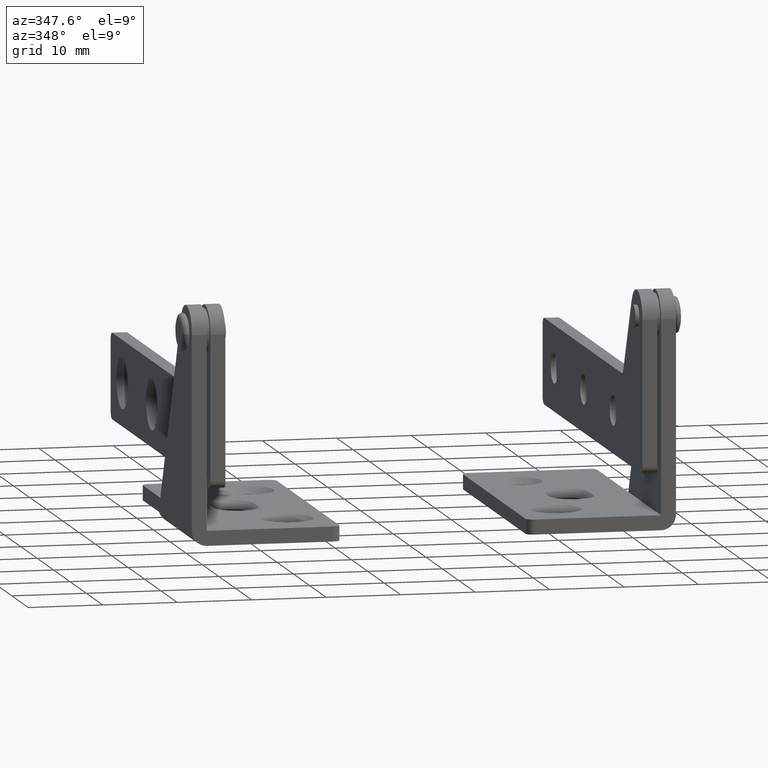
[diagram: clean part render]
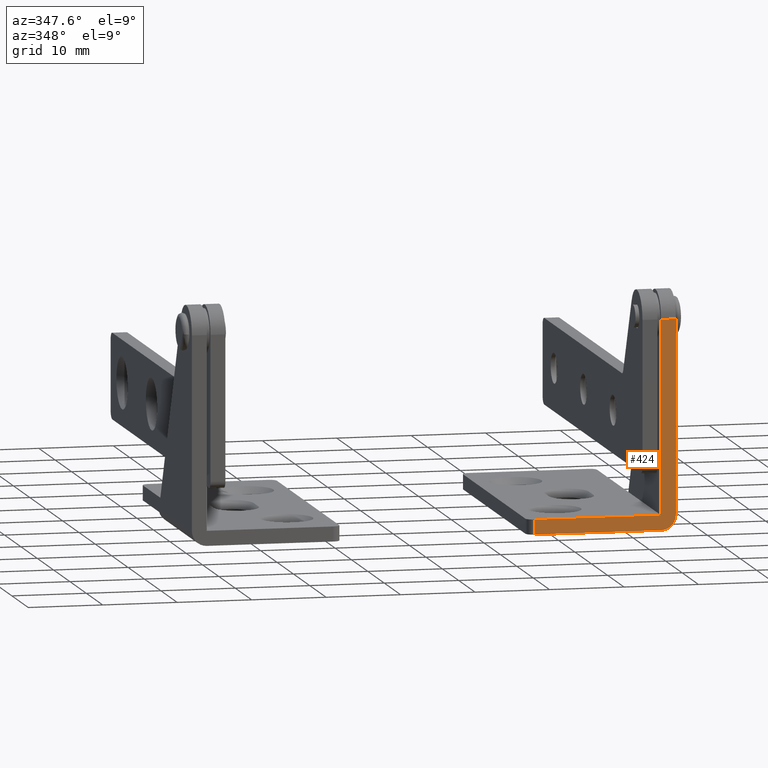
[diagram: same view with one face highlighted and labeled with its STEP entity id]
A machine part, auxiliary view. The second image highlights one B-rep face of the part: STEP entity #424.
In plain terms, the highlighted planar face has unit normal (0, -1, 0).
Its self-contained STEP definition (entity closure, byte-faithful):
#424=ADVANCED_FACE('',(#1406),#1405,.T.);
#1405=PLANE('',#2618);
#1406=FACE_OUTER_BOUND('',#2619,.T.);
#2615=CARTESIAN_POINT('',(-1.90000000000E+000,-3.50000000000E+000,-3.08000000000E+001));
#2616=DIRECTION('',(-0.00000000000E+000,1.00000000000E+000,0.00000000000E+000));
#2617=DIRECTION('',(0.00000000000E+000,-0.00000000000E+000,1.00000000000E+000));
#2618=AXIS2_PLACEMENT_3D('',#2615,#2616,#2617);
#2619=EDGE_LOOP('',(#3491,#3492,#3493,#3494,#3495,#3496,#3497));
#3491=ORIENTED_EDGE('',*,*,#3943,.F.);
#3492=ORIENTED_EDGE('',*,*,#3980,.T.);
#3493=ORIENTED_EDGE('',*,*,#3913,.T.);
#3494=ORIENTED_EDGE('',*,*,#3949,.F.);
#3495=ORIENTED_EDGE('',*,*,#3972,.F.);
#3496=ORIENTED_EDGE('',*,*,#3926,.T.);
#3497=ORIENTED_EDGE('',*,*,#3981,.F.);
#3913=EDGE_CURVE('',#5250,#5251,#5252,.T.);
#3926=EDGE_CURVE('',#5339,#5340,#5341,.T.);
#3943=EDGE_CURVE('',#5450,#5457,#5458,.T.);
#3949=EDGE_CURVE('',#5491,#5251,#5499,.T.);
#3972=EDGE_CURVE('',#5339,#5491,#5652,.T.);
#3980=EDGE_CURVE('',#5450,#5250,#5701,.T.);
#3981=EDGE_CURVE('',#5457,#5340,#5707,.T.);
#5250=VERTEX_POINT('',#7105);
#5251=VERTEX_POINT('',#7106);
#5252=LINE('',#7107,#7108);
#5339=VERTEX_POINT('',#7159);
#5340=VERTEX_POINT('',#7160);
#5341=LINE('',#7161,#7162);
#5450=VERTEX_POINT('',#7231);
#5457=VERTEX_POINT('',#7236);
#5458=LINE('',#7237,#7238);
#5491=VERTEX_POINT('',#7258);
#5499=LINE('',#7264,#7265);
#5652=LINE('',#7357,#7358);
#5701=LINE('',#7383,#7384);
#5707=CIRCLE('',#7389,2.00000000000E+000);
#7105=CARTESIAN_POINT('',(2.00000000000E+000,-3.50000000000E+000,8.40256683676E-014));
#7106=CARTESIAN_POINT('',(2.00000000000E+000,-3.50000000000E+000,-2.60000000000E+001));
#7107=CARTESIAN_POINT('',(2.00000000000E+000,-3.50000000000E+000,8.40256683676E-014));
#7108=VECTOR('',#7109,2.60000000000E+001);
#7109=DIRECTION('',(0.00000000000E+000,0.00000000000E+000,-1.00000000000E+000));
#7159=CARTESIAN_POINT('',(1.90000000000E+001,-3.50000000000E+000,-2.80000000000E+001));
#7160=CARTESIAN_POINT('',(2.00000000001E+000,-3.50000000000E+000,-2.80000000000E+001));
#7161=CARTESIAN_POINT('',(1.90000000000E+001,-3.50000000000E+000,-2.80000000000E+001));
#7162=VECTOR('',#7163,1.70000000000E+001);
#7163=DIRECTION('',(-1.00000000000E+000,0.00000000000E+000,0.00000000000E+000));
#7231=CARTESIAN_POINT('',(0.00000000000E+000,-3.50000000000E+000,-1.82610864410E-014));
#7236=CARTESIAN_POINT('',(0.00000000000E+000,-3.50000000000E+000,-2.60000000000E+001));
#7237=CARTESIAN_POINT('',(0.00000000000E+000,-3.50000000000E+000,-1.82076576039E-014));
#7238=VECTOR('',#7239,2.60000000000E+001);
#7239=DIRECTION('',(0.00000000000E+000,0.00000000000E+000,-1.00000000000E+000));
#7258=CARTESIAN_POINT('',(1.90000000000E+001,-3.50000000000E+000,-2.60000000000E+001));
#7264=CARTESIAN_POINT('',(1.90000000000E+001,-3.50000000000E+000,-2.60000000000E+001));
#7265=VECTOR('',#7266,1.70000000000E+001);
#7266=DIRECTION('',(-1.00000000000E+000,0.00000000000E+000,0.00000000000E+000));
#7357=CARTESIAN_POINT('',(1.90000000000E+001,-3.50000000000E+000,-2.80000000000E+001));
#7358=VECTOR('',#7359,2.00000000000E+000);
#7359=DIRECTION('',(0.00000000000E+000,0.00000000000E+000,1.00000000000E+000));
#7383=CARTESIAN_POINT('',(0.00000000000E+000,-3.50000000000E+000,-1.82610864410E-014));
#7384=VECTOR('',#7385,2.00000000000E+000);
#7385=DIRECTION('',(1.00000000000E+000,0.00000000000E+000,0.00000000000E+000));
#7386=CARTESIAN_POINT('',(2.00000000000E+000,-3.50000000000E+000,-2.60000000000E+001));
#7387=DIRECTION('',(0.00000000000E+000,-1.00000000000E+000,-0.00000000000E+000));
#7388=DIRECTION('',(4.77484718431E-012,0.00000000000E+000,-1.00000000000E+000));
#7389=AXIS2_PLACEMENT_3D('',#7386,#7387,#7388);